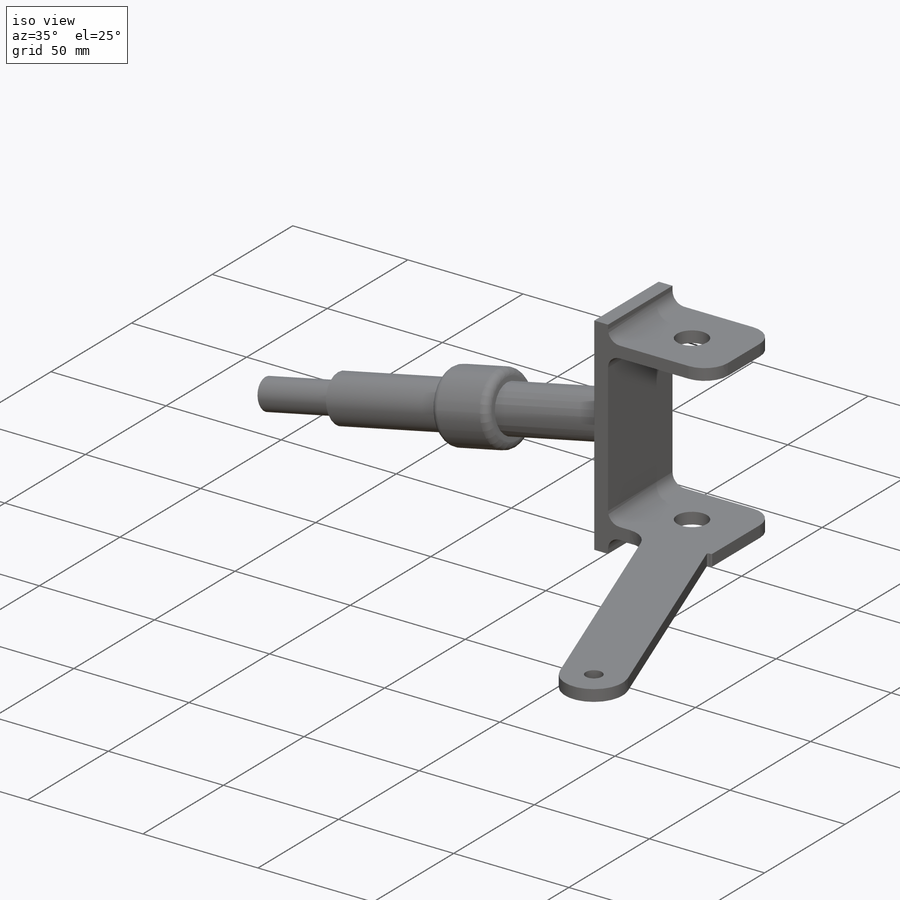
[diagram: iso view]
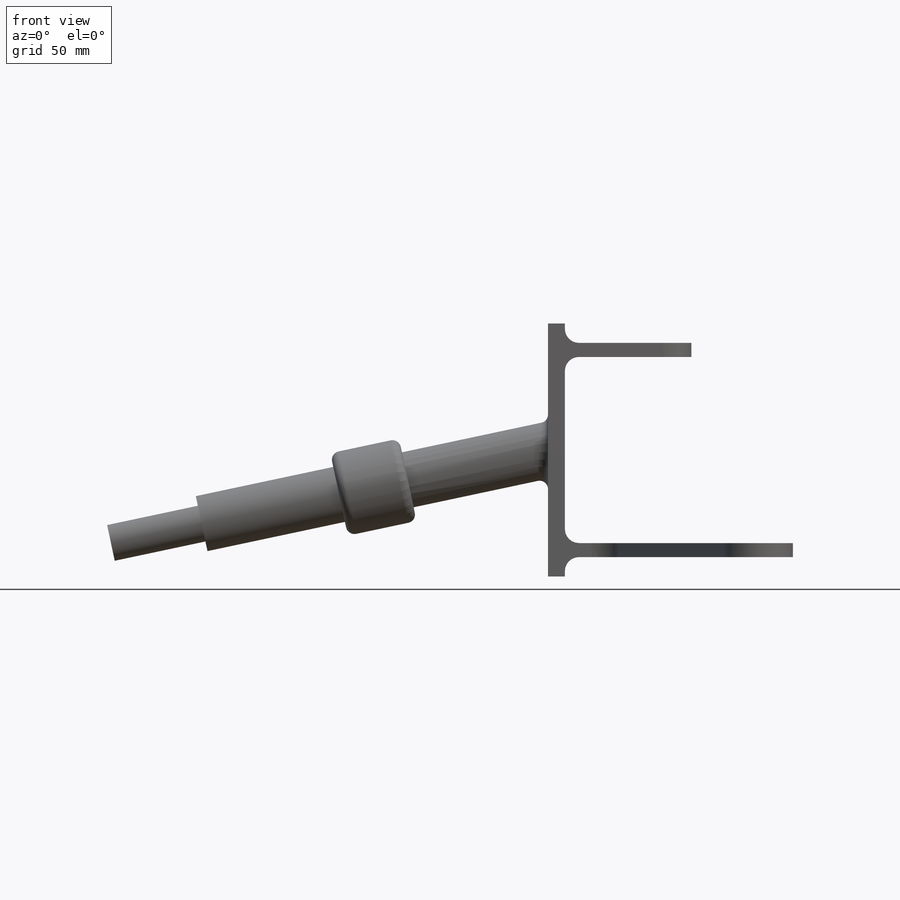
[diagram: front view]
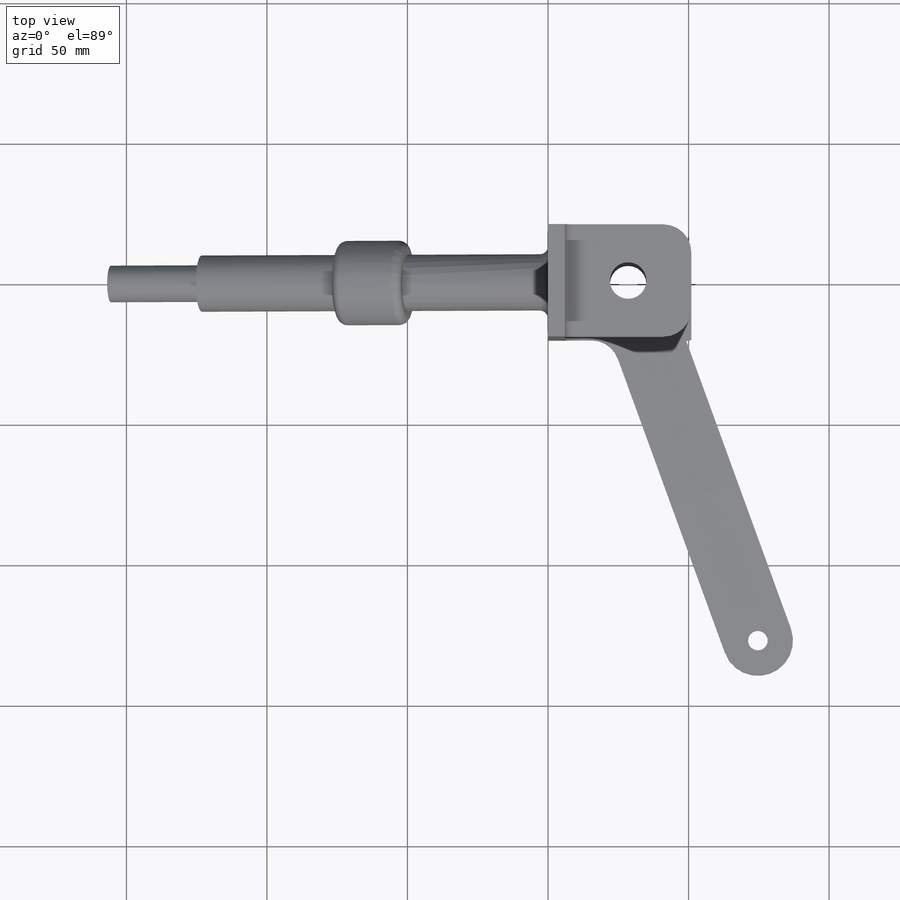
[diagram: top view]
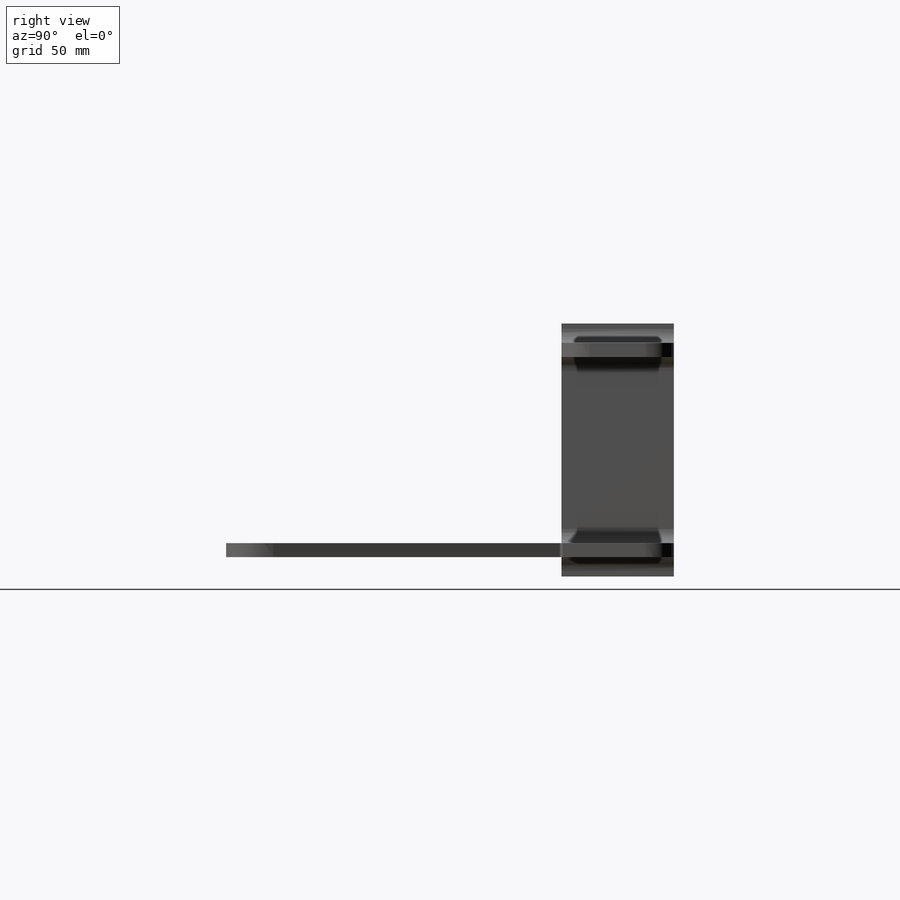
[diagram: right view]
SOLIDWORKS PART (.sldprt)
format: sldprt  version: not decoded by parser v0  size: 352,256 bytes
history: native  units: mm
features: fillet x12, sketch x11, extrude x6, plane x3, material x1, cut_extrude x1, sweep x1 (+13 scaffold rows collapsed)
feature tree (48):
  scaffold x13  (default folders/planes/origin — collapsed)
  material  "Material <not specified>"
  sketch  "Sketch1"  dims[c1.D1=~70.869479mm c1.D2=~43.930788mm c2.D1=90.0mm]
  extrude  "Boss-Extrude1"  Depth=6mm
  sketch  "Sketch2"  dims[c1.D1=~66.226161mm c1.D2=40.0mm c2.D1=5.0mm]
  extrude  "Boss-Extrude2"  Depth=45mm
  sketch  "Sketch3"  dims[D1=~33.053388mm]
  cut_extrude  "Cut-Extrude1"  [1 undecoded]
  sketch  "Sketch6"  dims[c1.D2=25.0mm c1.D1=135.0mm c2.D1=20.0deg c3.D1=~7.061493mm c3.D2=12.5mm]
  extrude  "Boss-Extrude3"  Depth=5mm
  sketch  "Sketch7"  dims[D1=~177.744091mm]
  plane  "Plane2"
  plane  "Plane3"
  sketch  "Sketch12"  dims[D1=20.0mm]
  sketch  "Sketch16"  dims[D1=126.0mm D2=33.0mm]
  sweep  "Sweep3"
  plane  "Plane6"  Offset=51mm
  sketch  "Sketch19"  dims[D1=13.0mm]
  extrude  "Boss-Extrude5"  Depth=33mm
  sketch  "Sketch20"  dims[D1=30.0mm]
  extrude  "Boss-Extrude6"  Depth=25mm
  fillet  "Fillet1"  Radius=10mm
  fillet  "Fillet2"  Radius=10mm
  fillet  "Fillet3"  Radius=10mm
  fillet  "Fillet4"  Radius=10mm
  fillet  "Fillet5"  Radius=5mm
  fillet  "Fillet6"  Radius=5mm
  fillet  "Fillet7"  Radius=5mm
  fillet  "Fillet8"  Radius=5mm
  fillet  "Fillet9"  Radius=0.5mm
  fillet  "Fillet10"  Radius=0.5mm
  sketch  "Sketch21"  dims[D1=20.0mm]
  fillet  "Fillet11"  Radius=3mm
  sketch  "Sketch24"  dims[D1=20.0mm]
  extrude  "Boss-Extrude8"  Depth=3mm
  fillet  "Fillet12"  Radius=3mm
decode coverage: 29 of 31 modeling features carry decoded parameters
note: ~ marks probable driven/reference dimensions
note: 1 parameter value undecoded
note: suppression state not decoded; provenance and decode notes live in map.json
